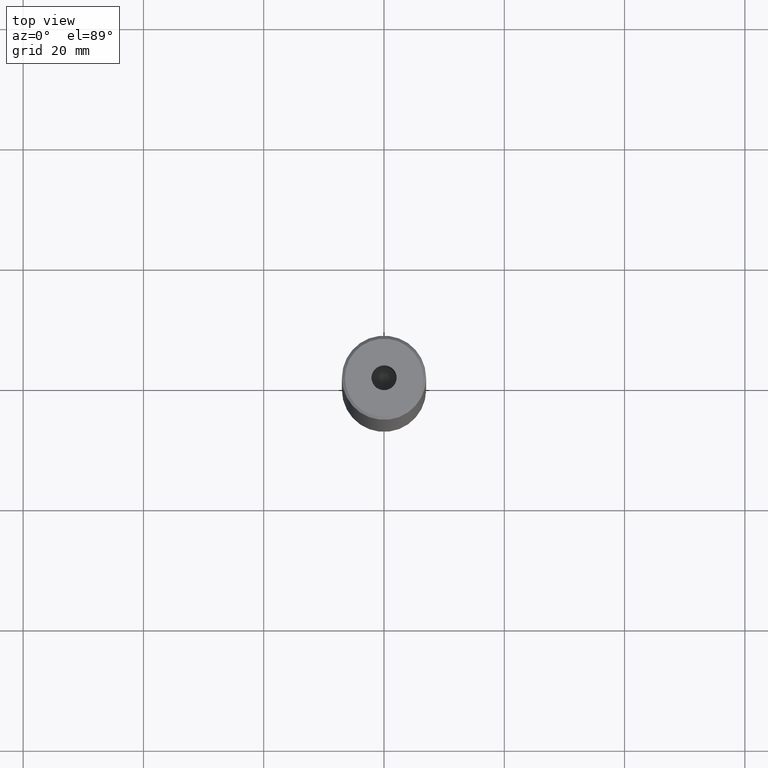
[diagram: clean part render]
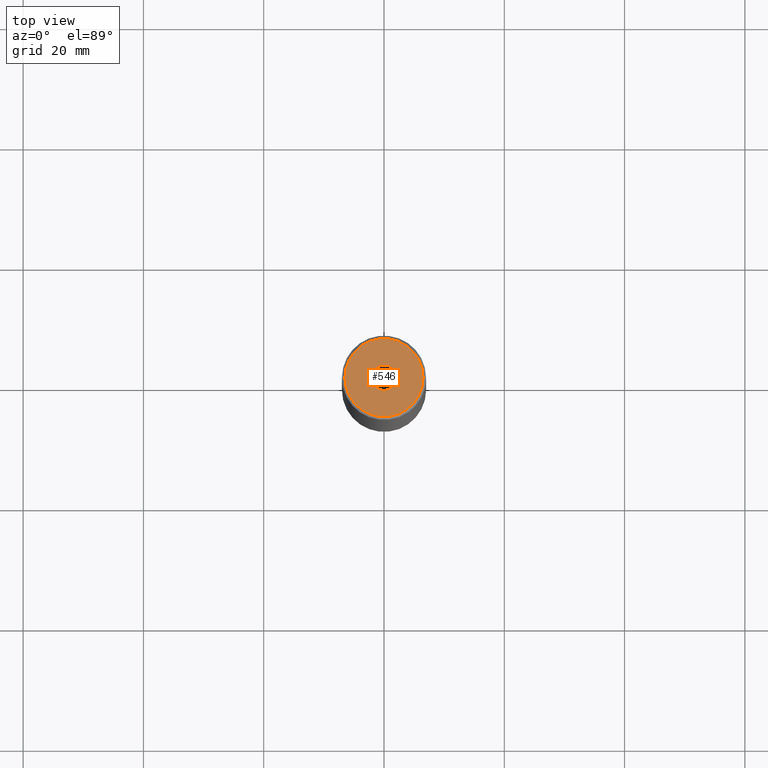
[diagram: same view with one face highlighted and labeled with its STEP entity id]
A machine part, top view. The second image highlights one B-rep face of the part: STEP entity #546.
In plain terms, the highlighted planar face has unit normal (0, -0, 1).
Its self-contained STEP definition (entity closure, byte-faithful):
#13 = VERTEX_POINT ( 'NONE', #144 ) ;
#20 = DIRECTION ( 'NONE',  ( 0.000000000000000000, -0.000000000000000000, 1.000000000000000000 ) ) ;
#41 = EDGE_LOOP ( 'NONE', ( #492, #187 ) ) ;
#68 = CIRCLE ( 'NONE', #136, 6.500000000000005329 ) ;
#92 = CARTESIAN_POINT ( 'NONE',  ( -6.500000000000005329, 0.000000000000000000, 0.000000000000000000 ) ) ;
#133 = ORIENTED_EDGE ( 'NONE', *, *, #448, .F. ) ;
#136 = AXIS2_PLACEMENT_3D ( 'NONE', #378, #148, #335 ) ;
#143 = DIRECTION ( 'NONE',  ( 1.000000000000000000, 0.000000000000000000, 0.000000000000000000 ) ) ;
#144 = CARTESIAN_POINT ( 'NONE',  ( 2.099999999999998757, 0.000000000000000000, -1.990051048614449116E-16 ) ) ;
#147 = FACE_BOUND ( 'NONE', #360, .T. ) ;
#148 = DIRECTION ( 'NONE',  ( -0.000000000000000000, -0.000000000000000000, 1.000000000000000000 ) ) ;
#172 = AXIS2_PLACEMENT_3D ( 'NONE', #565, #20, #518 ) ;
#182 = CARTESIAN_POINT ( 'NONE',  ( 0.000000000000000000, 0.000000000000000000, -1.990051048614449116E-16 ) ) ;
#187 = ORIENTED_EDGE ( 'NONE', *, *, #399, .T. ) ;
#190 = CARTESIAN_POINT ( 'NONE',  ( 6.500000000000005329, 8.266365894244638278E-16, 0.000000000000000000 ) ) ;
#212 = AXIS2_PLACEMENT_3D ( 'NONE', #182, #225, #418 ) ;
#225 = DIRECTION ( 'NONE',  ( -0.000000000000000000, -0.000000000000000000, 1.000000000000000000 ) ) ;
#256 = AXIS2_PLACEMENT_3D ( 'NONE', #449, #313, #143 ) ;
#275 = EDGE_CURVE ( 'NONE', #435, #581, #68, .T. ) ;
#281 = ORIENTED_EDGE ( 'NONE', *, *, #456, .F. ) ;
#287 = FACE_OUTER_BOUND ( 'NONE', #41, .T. ) ;
#313 = DIRECTION ( 'NONE',  ( -0.000000000000000000, -0.000000000000000000, 1.000000000000000000 ) ) ;
#335 = DIRECTION ( 'NONE',  ( 1.000000000000000000, 0.000000000000000000, 0.000000000000000000 ) ) ;
#337 = PLANE ( 'NONE',  #172 ) ;
#347 = AXIS2_PLACEMENT_3D ( 'NONE', #434, #359, #393 ) ;
#359 = DIRECTION ( 'NONE',  ( -0.000000000000000000, -0.000000000000000000, 1.000000000000000000 ) ) ;
#360 = EDGE_LOOP ( 'NONE', ( #281, #133 ) ) ;
#378 = CARTESIAN_POINT ( 'NONE',  ( 0.000000000000000000, 0.000000000000000000, 0.000000000000000000 ) ) ;
#393 = DIRECTION ( 'NONE',  ( 1.000000000000000000, 0.000000000000000000, 0.000000000000000000 ) ) ;
#394 = CIRCLE ( 'NONE', #212, 2.099999999999998757 ) ;
#399 = EDGE_CURVE ( 'NONE', #581, #435, #470, .T. ) ;
#418 = DIRECTION ( 'NONE',  ( 1.000000000000000000, 0.000000000000000000, 0.000000000000000000 ) ) ;
#434 = CARTESIAN_POINT ( 'NONE',  ( 0.000000000000000000, 0.000000000000000000, 0.000000000000000000 ) ) ;
#435 = VERTEX_POINT ( 'NONE', #92 ) ;
#448 = EDGE_CURVE ( 'NONE', #527, #13, #394, .T. ) ;
#449 = CARTESIAN_POINT ( 'NONE',  ( 0.000000000000000000, 0.000000000000000000, -1.990051048614449116E-16 ) ) ;
#456 = EDGE_CURVE ( 'NONE', #13, #527, #536, .T. ) ;
#470 = CIRCLE ( 'NONE', #347, 6.500000000000005329 ) ;
#492 = ORIENTED_EDGE ( 'NONE', *, *, #275, .T. ) ;
#518 = DIRECTION ( 'NONE',  ( 1.000000000000000000, 0.000000000000000000, 0.000000000000000000 ) ) ;
#527 = VERTEX_POINT ( 'NONE', #586 ) ;
#536 = CIRCLE ( 'NONE', #256, 2.099999999999998757 ) ;
#546 = ADVANCED_FACE ( 'NONE', ( #147, #287 ), #337, .T. ) ;
#565 = CARTESIAN_POINT ( 'NONE',  ( 0.000000000000000000, 0.000000000000000000, 0.000000000000000000 ) ) ;
#581 = VERTEX_POINT ( 'NONE', #190 ) ;
#586 = CARTESIAN_POINT ( 'NONE',  ( -2.099999999999998757, 2.571758278209439985E-16, -1.990051048614449116E-16 ) ) ;